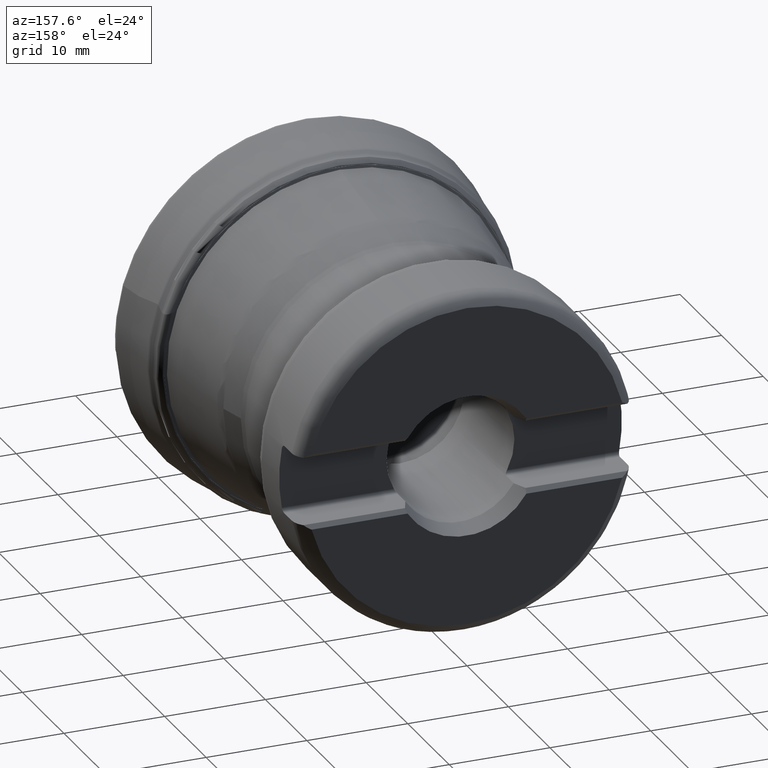
[diagram: clean part render]
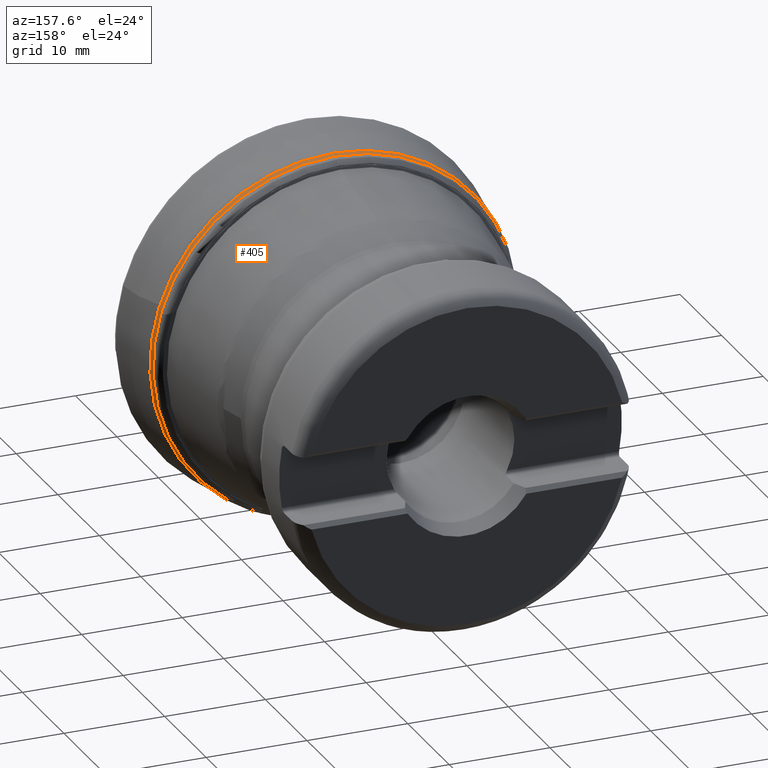
[diagram: same view with one face highlighted and labeled with its STEP entity id]
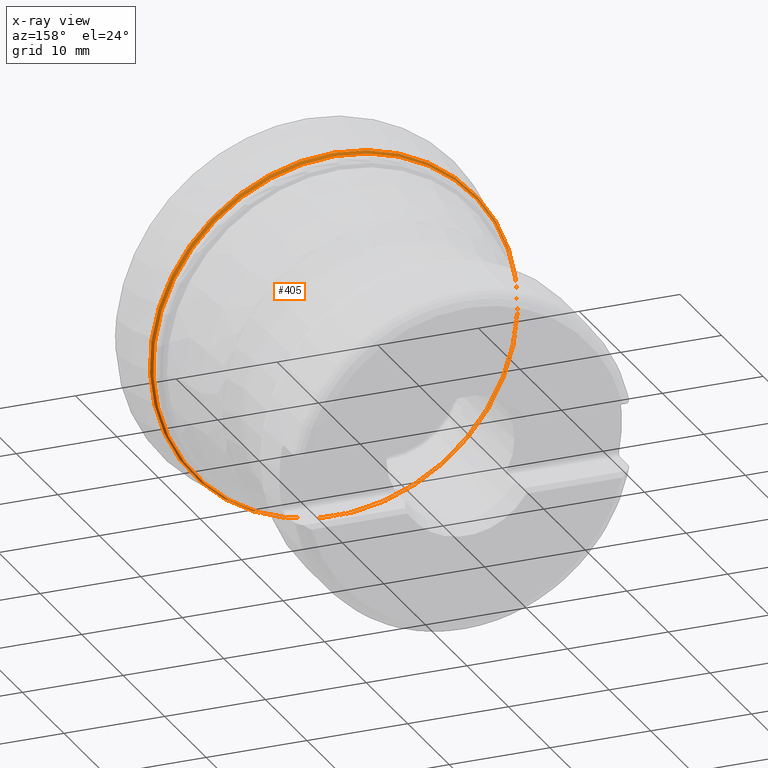
[diagram: x-ray of the same camera — body ghosted, the highlighted face saturated]
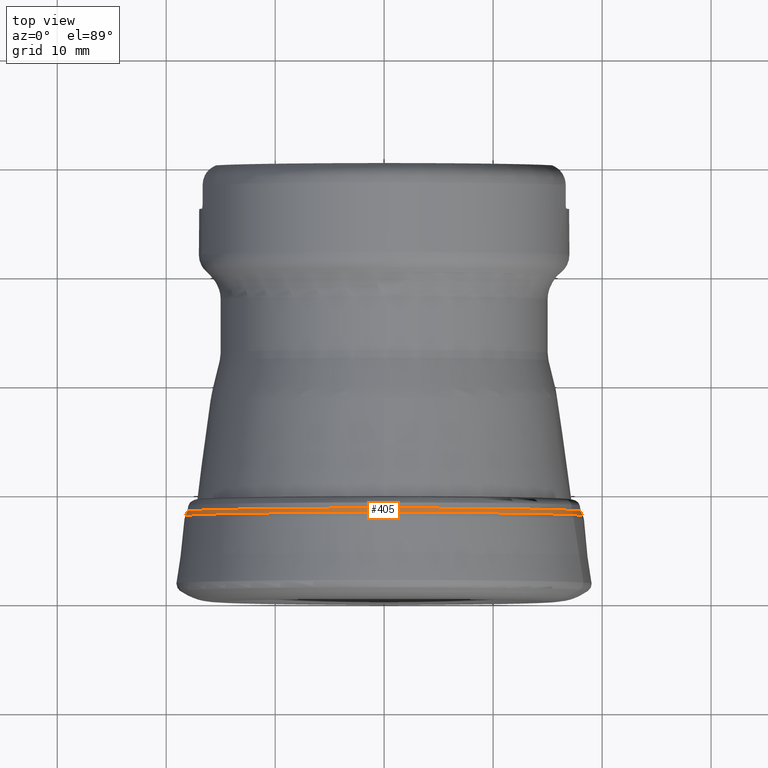
[diagram: same view with one face highlighted and labeled with its STEP entity id]
A machine part, auxiliary view. The second image highlights one B-rep face of the part: STEP entity #405.
The next image is the same camera in x-ray: the body ghosted, the highlighted face saturated — about 10% of this face is hidden behind the body in this view.
A second angle (top view) of the same face is appended — the face is thin or edge-on in the first view.
In plain terms, the highlighted face is a SurfaceOfRevolution surface.
Its self-contained STEP definition (entity closure, byte-faithful):
#111=SURFACE_OF_REVOLUTION('',#261,#150);
#150=AXIS1_PLACEMENT('',#2152,#1576);
#261=B_SPLINE_CURVE_WITH_KNOTS('',3,(#2148,#2149,#2150,#2151),
 .UNSPECIFIED.,.F.,.F.,(4,4),(0.,1.),.UNSPECIFIED.);
#405=ADVANCED_FACE('',(#505,#506),#111,.F.);
#505=FACE_BOUND('',#647,.T.);
#506=FACE_BOUND('',#648,.T.);
#647=EDGE_LOOP('',(#889));
#648=EDGE_LOOP('',(#890));
#889=ORIENTED_EDGE('',*,*,#1146,.T.);
#890=ORIENTED_EDGE('',*,*,#1145,.F.);
#1024=VERTEX_POINT('',#2137);
#1025=VERTEX_POINT('',#2147);
#1145=EDGE_CURVE('',#1024,#1024,#1217,.T.);
#1146=EDGE_CURVE('',#1025,#1025,#1218,.T.);
#1217=CIRCLE('',#1334,18.0905298570313);
#1218=CIRCLE('',#1335,18.2455497547583);
#1334=AXIS2_PLACEMENT_3D('',#2136,#1571,#1572);
#1335=AXIS2_PLACEMENT_3D('',#2146,#1574,#1575);
#1571=DIRECTION('',(0.,1.,0.));
#1572=DIRECTION('',(0.,0.,1.));
#1574=DIRECTION('',(0.,1.,0.));
#1575=DIRECTION('',(0.,0.,1.));
#1576=DIRECTION('',(0.,1.,0.));
#2136=CARTESIAN_POINT('',(0.,8.30878007556974,0.));
#2137=CARTESIAN_POINT('',(0.,8.30878007556974,18.0905298570313));
#2146=CARTESIAN_POINT('',(0.,7.91661820659955,0.));
#2147=CARTESIAN_POINT('',(0.,7.91661820659955,18.2455497547583));
#2148=CARTESIAN_POINT('',(17.264608131506,8.30878007556974,5.40375578405212));
#2149=CARTESIAN_POINT('',(17.2860098754648,8.17723760617783,5.50540706884815));
#2150=CARTESIAN_POINT('',(17.3072629529507,8.04659223828458,5.60825613381962));
#2151=CARTESIAN_POINT('',(17.3284048389534,7.91661820659955,5.71195864749537));
#2152=CARTESIAN_POINT('',(0.,0.,0.));